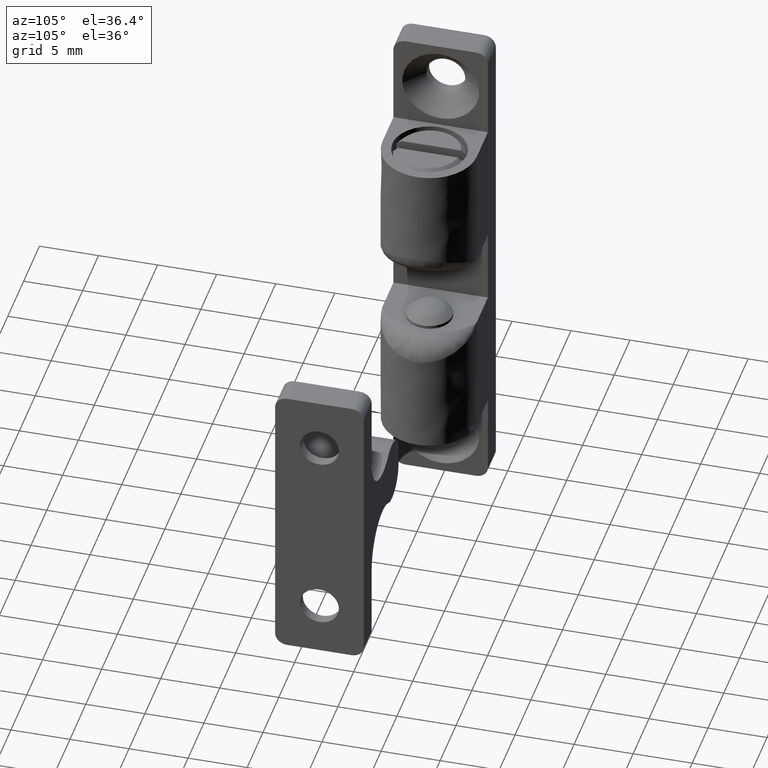
[diagram: clean part render]
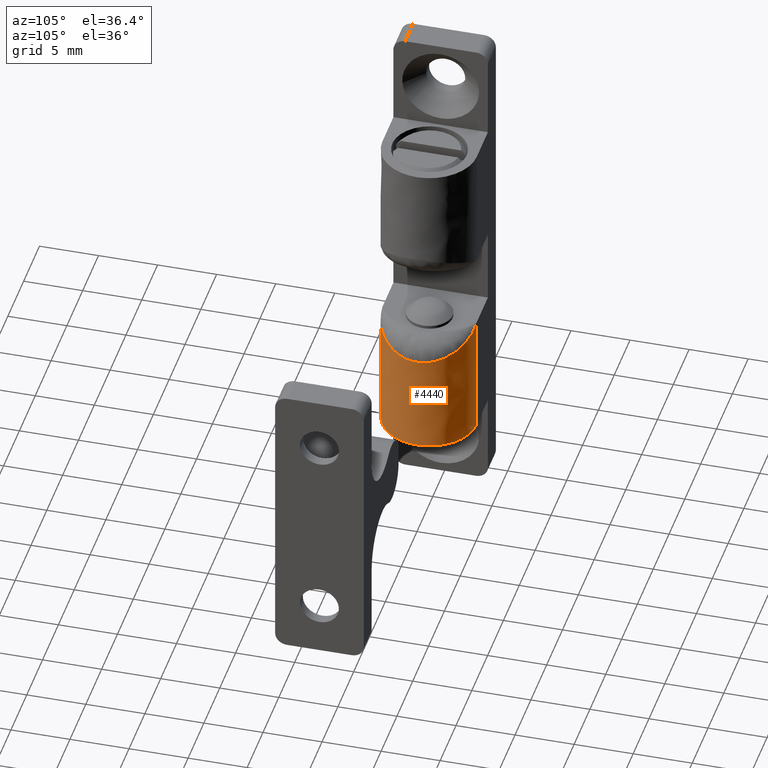
[diagram: same view with one face highlighted and labeled with its STEP entity id]
A machine part, auxiliary view. The second image highlights one B-rep face of the part: STEP entity #4440.
In plain terms, the highlighted face is a freeform B-spline surface patch.
Its self-contained STEP definition (entity closure, byte-faithful):
#4167=CARTESIAN_POINT('',(3.200000000000000,-4.0,6.0));
#4168=VERTEX_POINT('',#4167);
#4169=CARTESIAN_POINT('',(3.200000000000000,4.0,6.0));
#4170=VERTEX_POINT('',#4169);
#4193=CARTESIAN_POINT('',(3.200000000000000,4.0,6.0));
#4194=CARTESIAN_POINT('',(3.246627383612863,3.997932145120997,6.097902479181344));
#4195=CARTESIAN_POINT('',(3.338108323678859,3.993875101950360,6.289982972152241));
#4196=CARTESIAN_POINT('',(3.471352214810491,3.961960921327987,6.571639862105036));
#4197=CARTESIAN_POINT('',(3.598290639399951,3.913922873343714,6.839921831313409));
#4198=CARTESIAN_POINT('',(3.718839730659163,3.850320226648834,7.094010539483499));
#4199=CARTESIAN_POINT('',(3.833021006424172,3.773916263338486,7.333315835962054));
#4200=CARTESIAN_POINT('',(3.940829504297222,3.686813521401111,7.557508605591375));
#4201=CARTESIAN_POINT('',(4.042267056278575,3.591150695678831,7.766475169686215));
#4202=CARTESIAN_POINT('',(4.137333729549528,3.488909658073300,7.960291846024877));
#4203=CARTESIAN_POINT('',(4.226030797622785,3.381951017824846,8.139195478589477));
#4204=CARTESIAN_POINT('',(4.308357294868266,3.271997707481159,8.303556632420330));
#4205=CARTESIAN_POINT('',(4.384320349673680,3.160634178318791,8.453853706556865));
#4206=CARTESIAN_POINT('',(4.453900559157377,3.049310194292871,8.590650196176581));
#4207=CARTESIAN_POINT('',(4.517169733881469,2.939329393328630,8.714569505859398));
#4208=CARTESIAN_POINT('',(4.690819665681962,2.610460791770358,9.056567208821541));
#4209=CARTESIAN_POINT('',(4.931661486123542,1.991377269906340,9.526510083657529));
#4210=CARTESIAN_POINT('',(5.147108769626963,1.004128116177904,9.916174351239610));
#4211=CARTESIAN_POINT('',(5.238590505549898,-0.171049938456126,10.061426066726099));
#4212=CARTESIAN_POINT('',(5.072742482515450,-1.567336684750771,9.796432591206855));
#4213=CARTESIAN_POINT('',(4.736218002085136,-2.542325128606988,9.145473133624721));
#4214=CARTESIAN_POINT('',(4.450621445513087,-3.059583908403872,8.584127625152199));
#4215=CARTESIAN_POINT('',(4.304571047333894,-3.282409889401163,8.296818579356939));
#4216=CARTESIAN_POINT('',(4.133350013399273,-3.499400347098556,7.953181367191283));
#4217=CARTESIAN_POINT('',(3.936614489518228,-3.697759652784887,7.549789835470929));
#4218=CARTESIAN_POINT('',(3.714380680382183,-3.860527139050132,7.085429197805033));
#4219=CARTESIAN_POINT('',(3.466899842297445,-3.976774267511423,6.561744635113165));
#4220=CARTESIAN_POINT('',(3.291326752322382,-3.992052708985394,6.192215599371672));
#4221=CARTESIAN_POINT('',(3.200000000000000,-4.0,6.000000000000006));
#4222=B_SPLINE_CURVE_WITH_KNOTS('',3,(#4193,#4194,#4195,#4196,#4197,#4198,#4199,#4200,#4201,#4202,#4203,#4204,#4205,#4206,#4207,#4208,#4209,#4210,#4211,#4212,#4213,#4214,#4215,#4216,#4217,#4218,#4219,#4220,#4221),.UNSPECIFIED.,.F.,.U.,(4,1,1,1,1,1,1,1,1,1,1,1,1,1,1,1,1,1,1,1,1,1,1,1,1,1,4),(0.0,0.024525283513761,0.048117561342321,0.070777159047835,0.092504449647925,0.113299861885596,0.133163890428473,0.152097108561732,0.170100184140718,0.187173899857168,0.203319179290847,0.218537120835820,0.232829042520606,0.246196542172531,0.258641579631297,0.347130054471838,0.427418459076534,0.500545515094553,0.612384695796354,0.741454271981460,0.767250088388525,0.796745265995692,0.829951036659657,0.866874957185424,0.907522219025806,0.951896413057643,1.0),.UNSPECIFIED.);
#4223=EDGE_CURVE('',#4170,#4168,#4222,.T.);
#4390=CARTESIAN_POINT('',(13.859999999999999,3.998629299902228,5.895292206768501));
#4391=CARTESIAN_POINT('',(2.933500000000002,3.998629299902228,5.895292206768501));
#4392=CARTESIAN_POINT('',(13.860000000000001,4.108008487677179,10.072314867053699));
#4393=CARTESIAN_POINT('',(2.933500000000003,4.108008487677179,10.072314867053699));
#4394=CARTESIAN_POINT('',(13.859999999999999,-0.069809625749127,9.999390780625564));
#4395=CARTESIAN_POINT('',(2.933500000000002,-0.069809625749127,9.999390780625564));
#4396=CARTESIAN_POINT('',(13.860000000000001,-4.247627739175433,9.926466694197432));
#4397=CARTESIAN_POINT('',(2.933500000000003,-4.247627739175433,9.926466694197432));
#4398=CARTESIAN_POINT('',(13.859999999999999,-3.992539193687466,5.755805841860580));
#4399=CARTESIAN_POINT('',(2.933500000000002,-3.992539193687466,5.755805841860580));
#4407=(BOUNDED_SURFACE()B_SPLINE_SURFACE(1,2,((#4390,#4392,#4394,#4396,#4398),(#4391,#4393,#4395,#4397,#4399)),.UNSPECIFIED.,.F.,.F.,.U.)B_SPLINE_SURFACE_WITH_KNOTS((2,2),(3,2,3),(0.0,10.926500000000001),(0.0,6.832831324267236,13.665662648534470),.UNSPECIFIED.)GEOMETRIC_REPRESENTATION_ITEM()RATIONAL_B_SPLINE_SURFACE(((1.0,0.691513055782269,1.0,0.691513055782269,1.0),(1.0,0.691513055782269,1.0,0.691513055782269,1.0)))REPRESENTATION_ITEM('')SURFACE());
#4408=CARTESIAN_POINT('',(13.600000000000000,4.0,6.0));
#4409=VERTEX_POINT('',#4408);
#4410=CARTESIAN_POINT('',(3.200000000000000,4.0,6.0));
#4411=CARTESIAN_POINT('',(13.600000000000000,4.0,6.0));
#4412=QUASI_UNIFORM_CURVE('',1,(#4410,#4411),.UNSPECIFIED.,.F.,.U.);
#4413=EDGE_CURVE('',#4170,#4409,#4412,.T.);
#4414=ORIENTED_EDGE('',*,*,#4413,.F.);
#4415=ORIENTED_EDGE('',*,*,#4223,.T.);
#4416=CARTESIAN_POINT('',(13.600000000000000,-4.0,6.0));
#4417=VERTEX_POINT('',#4416);
#4418=CARTESIAN_POINT('',(13.600000000000000,-4.0,6.0));
#4419=CARTESIAN_POINT('',(3.200000000000000,-4.0,6.0));
#4420=QUASI_UNIFORM_CURVE('',1,(#4418,#4419),.UNSPECIFIED.,.F.,.U.);
#4421=EDGE_CURVE('',#4417,#4168,#4420,.T.);
#4422=ORIENTED_EDGE('',*,*,#4421,.F.);
#4423=CARTESIAN_POINT('',(13.600000000000000,4.0,6.0));
#4424=CARTESIAN_POINT('',(13.600000000000003,4.000000000000000,10.000000000000002));
#4425=CARTESIAN_POINT('',(13.600000000000000,0.0,10.0));
#4426=CARTESIAN_POINT('',(13.600000000000003,-4.000000000000000,10.000000000000002));
#4427=CARTESIAN_POINT('',(13.600000000000000,-4.0,6.0));
#4435=(BOUNDED_CURVE()B_SPLINE_CURVE(2,(#4423,#4424,#4425,#4426,#4427),.UNSPECIFIED.,.F.,.U.)B_SPLINE_CURVE_WITH_KNOTS((3,2,3),(0.0,0.500000000000000,1.0),.UNSPECIFIED.)CURVE()GEOMETRIC_REPRESENTATION_ITEM()RATIONAL_B_SPLINE_CURVE((1.0,0.707106781186548,1.0,0.707106781186548,1.0))REPRESENTATION_ITEM(''));
#4436=EDGE_CURVE('',#4409,#4417,#4435,.T.);
#4437=ORIENTED_EDGE('',*,*,#4436,.F.);
#4438=EDGE_LOOP('',(#4414,#4415,#4422,#4437));
#4439=FACE_OUTER_BOUND('',#4438,.T.);
#4440=ADVANCED_FACE('',(#4439),#4407,.T.);